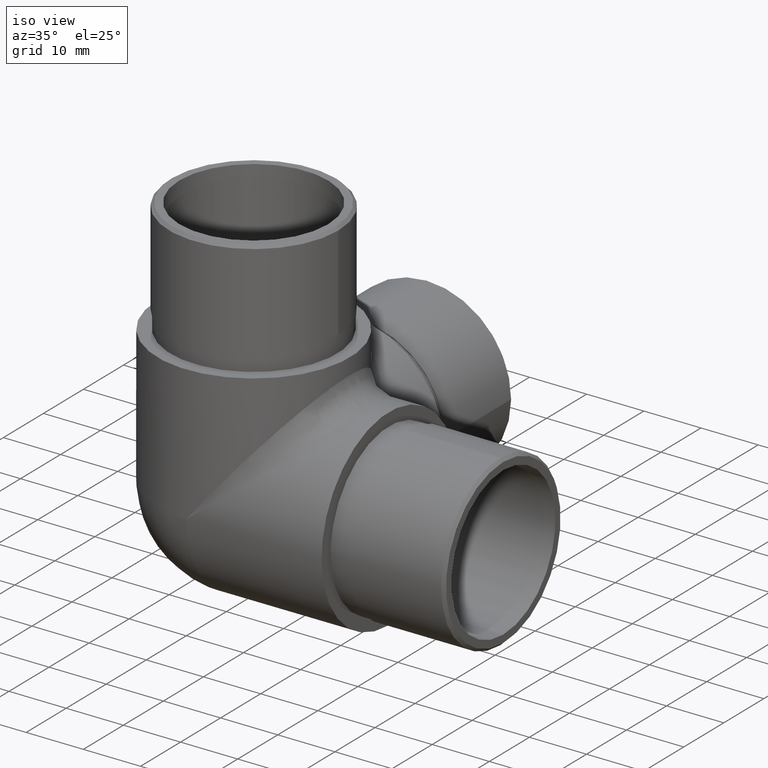
[diagram: clean part render]
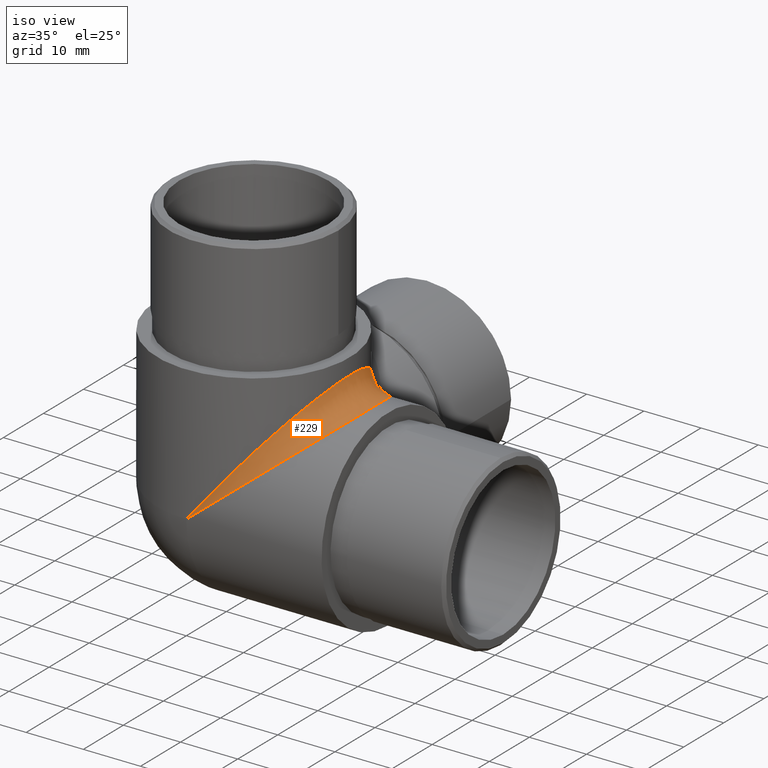
[diagram: same view with one face highlighted and labeled with its STEP entity id]
A machine part, iso view. The second image highlights one B-rep face of the part: STEP entity #229.
In plain terms, the highlighted face is a freeform B-spline surface patch.
Its self-contained STEP definition (entity closure, byte-faithful):
#6 = CARTESIAN_POINT ( 'NONE',  ( 1.599757130022875400E-014, -3.469446951953614200E-015, 16.85000000000001900 ) ) ;
#36 = CARTESIAN_POINT ( 'NONE',  ( 14.47047048483035100, 25.52249188407491700, 34.75559700942054100 ) ) ;
#53 = CARTESIAN_POINT ( 'NONE',  ( 15.81431149141733200, 10.84208202364713400, 32.66431149141733000 ) ) ;
#61 = CARTESIAN_POINT ( 'NONE',  ( 20.24970361800240300, 20.94850144072781000, 33.21486839152603900 ) ) ;
#62 = CARTESIAN_POINT ( 'NONE',  ( 4.093632277631148700, 0.2453534014377147000, 20.15828315962159000 ) ) ;
#67 = CARTESIAN_POINT ( 'NONE',  ( 14.40577954046329600, 7.952797080830926300, 31.25577954045901700 ) ) ;
#77 = CARTESIAN_POINT ( 'NONE',  ( 14.74317638773952900, 28.76474926299331300, 28.76474926299332300 ) ) ;
#83 = CARTESIAN_POINT ( 'NONE',  ( 14.74317638773951200, 28.76474926299331600, 28.76474926299331600 ) ) ;
#84 =( BOUNDED_SURFACE ( )  B_SPLINE_SURFACE ( 3, 2, ( 
 ( #83, #764, #840 ),
 ( #674, #917, #843 ),
 ( #334, #928, #1081 ),
 ( #329, #166, #257 ),
 ( #426, #597, #36 ),
 ( #517, #1025, #133 ),
 ( #890, #812, #548 ),
 ( #798, #476, #219 ),
 ( #61, #894, #646 ),
 ( #1063, #651, #903 ),
 ( #735, #733, #387 ),
 ( #810, #228, #1068 ),
 ( #230, #470, #1056 ),
 ( #466, #567, #658 ),
 ( #740, #821, #1058 ),
 ( #732, #141, #974 ),
 ( #815, #222, #557 ),
 ( #564, #53, #309 ),
 ( #402, #983, #299 ),
 ( #656, #391, #478 ),
 ( #898, #67, #233 ),
 ( #306, #1070, #813 ),
 ( #390, #642, #149 ),
 ( #559, #977, #475 ),
 ( #822, #901, #729 ),
 ( #314, #971, #139 ),
 ( #142, #398, #979 ),
 ( #62, #146, #849 ),
 ( #588, #251, #86 ),
 ( #691, #841, #6 ) ),
 .UNSPECIFIED., .F., .F., .F. ) 
 B_SPLINE_SURFACE_WITH_KNOTS ( ( 4, 2, 2, 2, 2, 2, 2, 2, 2, 2, 2, 2, 2, 2, 4 ),
 ( 3, 3 ),
 ( 5.497787143782138000, 5.645049299419159900, 5.792311455056180900, 5.939573610693202900, 6.086835766330224800, 6.234097921967245900, 6.381360077604267800, 6.528622233241289800, 6.675884388878310800, 6.823146544515331900, 6.970408700152353800, 7.117670855789375800, 7.264933011426396800, 7.559457322700439800, 7.853981633974482800 ),
 ( 0.0000000000000000000, 1.000000000000000000 ),
 .UNSPECIFIED. ) 
 GEOMETRIC_REPRESENTATION_ITEM ( )  RATIONAL_B_SPLINE_SURFACE ( (
 ( 1.000000000000000000, 0.8660254037844386000, 1.000000000000000000),
 ( 1.000000000000000000, 0.8518581657888411000, 1.000000000000000000),
 ( 1.000000000000000000, 0.8373286426274312300, 1.000000000000000000),
 ( 1.000000000000000000, 0.8087926538588080500, 1.000000000000000000),
 ( 1.000000000000000000, 0.7947862272500163500, 1.000000000000000000),
 ( 1.000000000000000000, 0.7686809988153058300, 1.000000000000000000),
 ( 1.000000000000000000, 0.7565887938673684400, 1.000000000000000000),
 ( 1.000000000000000000, 0.7357213436835566800, 1.000000000000000000),
 ( 1.000000000000000000, 0.7269560325909227800, 1.000000000000000000),
 ( 1.000000000000000000, 0.7139188639523945700, 1.000000000000000000),
 ( 1.000000000000000000, 0.7096565420258836900, 1.000000000000000000),
 ( 1.000000000000000000, 0.7062584530666191600, 1.000000000000000000),
 ( 1.000000000000000000, 0.7071257296528171700, 1.000000000000000000),
 ( 1.000000000000000000, 0.7138650231660640400, 1.000000000000000000),
 ( 1.000000000000000000, 0.7197312459720851500, 1.000000000000000000),
 ( 1.000000000000000000, 0.7356308174511879700, 1.000000000000000000),
 ( 1.000000000000000000, 0.7456538433598382000, 1.000000000000000000),
 ( 1.000000000000000000, 0.7685763963373676300, 1.000000000000000000),
 ( 1.000000000000000000, 0.7814668926403527400, 1.000000000000000000),
 ( 1.000000000000000000, 0.8086913583441225400, 1.000000000000000000),
 ( 1.000000000000000000, 0.8230199978452944500, 1.000000000000000000),
 ( 1.000000000000000000, 0.8517664595826001100, 1.000000000000000000),
 ( 1.000000000000000000, 0.8661820557088296700, 1.000000000000000000),
 ( 1.000000000000000000, 0.8939364460772187800, 1.000000000000000000),
 ( 1.000000000000000000, 0.9072747350166889800, 1.000000000000000000),
 ( 1.000000000000000000, 0.9442614554962144300, 1.000000000000000000),
 ( 1.000000000000000000, 0.9647745980452348000, 1.000000000000000000),
 ( 1.000000000000000000, 0.9926394134256518700, 1.000000000000000000),
 ( 1.000000000000000000, 1.000049692711909800, 1.000000000000000000),
 ( 1.000000000000000000, 1.000000000000000000, 1.000000000000000000) ) ) 
 REPRESENTATION_ITEM ( '' )  SURFACE ( )  );
#86 = CARTESIAN_POINT ( 'NONE',  ( 1.654339618480561900, -1.898799118040489000E-015, 18.89706118962941900 ) ) ;
#106 = CARTESIAN_POINT ( 'NONE',  ( 24.38557694080397200, 16.29392158518265200, 47.02443793565358000 ) ) ;
#133 = CARTESIAN_POINT ( 'NONE',  ( 15.25027612370925400, 24.06357814696112700, 35.72051971390590800 ) ) ;
#139 = CARTESIAN_POINT ( 'NONE',  ( 7.985904076289603600, 1.920687818538334300, 26.73166765522868700 ) ) ;
#141 = CARTESIAN_POINT ( 'NONE',  ( 16.43909050839588200, 12.95340451194903700, 33.28909050839768500 ) ) ;
#142 = CARTESIAN_POINT ( 'NONE',  ( 8.011238763879822100, 1.205757284386809400, 23.32431046385369600 ) ) ;
#146 = CARTESIAN_POINT ( 'NONE',  ( 3.725439844408351400, 0.3132273492216573500, 20.57543984439865200 ) ) ;
#149 = CARTESIAN_POINT ( 'NONE',  ( 11.92862569235843600, 4.920435019524434800, 31.61034692496497600 ) ) ;
#166 = CARTESIAN_POINT ( 'NONE',  ( 14.82445315692778300, 25.02916543859649000, 31.67445315693094800 ) ) ;
#184 = ORIENTED_EDGE ( 'NONE', *, *, #411, .F. ) ;
#195 = DIRECTION ( 'NONE',  ( 0.0000000000000000000, -0.7071067811865479100, -0.7071067811865471300 ) ) ;
#219 = CARTESIAN_POINT ( 'NONE',  ( 16.14366665606617000, 21.74782180458503000, 36.82599108480793900 ) ) ;
#222 = CARTESIAN_POINT ( 'NONE',  ( 16.27147724458715300, 12.26231219584090800, 33.12147724458714700 ) ) ;
#228 = CARTESIAN_POINT ( 'NONE',  ( 16.86082885427722600, 16.84710524222320100, 33.71082885427544800 ) ) ;
#229 = ADVANCED_FACE ( 'NONE', ( #687 ), #84, .F. ) ;
#230 = CARTESIAN_POINT ( 'NONE',  ( 20.84991934792729800, 16.02155080533441700, 33.69993482074812600 ) ) ;
#233 = CARTESIAN_POINT ( 'NONE',  ( 13.54994706066039700, 6.799847454637993700, 33.61655170413985900 ) ) ;
#251 = CARTESIAN_POINT ( 'NONE',  ( 1.850617136459671100, 6.273738993245411700E-012, 18.70061713645884200 ) ) ;
#257 = CARTESIAN_POINT ( 'NONE',  ( 14.02676316804169500, 26.22318230695452700, 34.20655857885262900 ) ) ;
#269 = CARTESIAN_POINT ( 'NONE',  ( 0.0000000000000000000, -6.938893903907228400E-015, 16.84999999999999800 ) ) ;
#289 = EDGE_LOOP ( 'NONE', ( #184, #431, #592 ) ) ;
#293 =( BOUNDED_CURVE ( )  B_SPLINE_CURVE ( 3, ( #269, #343, #106, #357 ),
 .UNSPECIFIED., .F., .F. ) 
 B_SPLINE_CURVE_WITH_KNOTS ( ( 4, 4 ),
 ( 4.712388980384689700, 7.068583470577033600 ),
 .UNSPECIFIED. ) 
 CURVE ( )  GEOMETRIC_REPRESENTATION_ITEM ( )  RATIONAL_B_SPLINE_CURVE ( ( 1.000000000000000000, 0.5884556215767268200, 0.5884556215767268200, 1.000000000000000000 ) ) 
 REPRESENTATION_ITEM ( '' )  );
#299 = CARTESIAN_POINT ( 'NONE',  ( 14.87795299498826500, 8.896815341599097600, 35.25981127273038900 ) ) ;
#306 = CARTESIAN_POINT ( 'NONE',  ( 15.46798420108408400, 5.521098869048615600, 29.35050521766504200 ) ) ;
#309 = CARTESIAN_POINT ( 'NONE',  ( 15.25084406827844700, 9.637622670941214100, 35.72122248211488900 ) ) ;
#314 = CARTESIAN_POINT ( 'NONE',  ( 9.881667655231000300, 1.920687818538154000, 24.83590407628933500 ) ) ;
#329 = CARTESIAN_POINT ( 'NONE',  ( 17.35655857885263500, 26.22318230695585900, 30.87676316804070700 ) ) ;
#334 = CARTESIAN_POINT ( 'NONE',  ( 16.13719548389027700, 27.55188425443910200, 29.89133064285704200 ) ) ;
#343 = CARTESIAN_POINT ( 'NONE',  ( 17.63641363597758300, -6.709203578114416100E-015, 38.67309936558650200 ) ) ;
#349 = CARTESIAN_POINT ( 'NONE',  ( 14.74317638773952400, 31.59317638773950100, 31.59317638773951500 ) ) ;
#357 = CARTESIAN_POINT ( 'NONE',  ( 11.91474926299332700, 28.76474926299331300, 31.59317638773950800 ) ) ;
#387 = CARTESIAN_POINT ( 'NONE',  ( 16.78911846251734400, 18.50291644772302400, 37.62466587201880900 ) ) ;
#390 = CARTESIAN_POINT ( 'NONE',  ( 14.76034692496497800, 4.920435019524184400, 28.77862569235815500 ) ) ;
#391 = CARTESIAN_POINT ( 'NONE',  ( 14.82249837655897900, 8.673329481796475400, 31.67249837655799300 ) ) ;
#398 = CARTESIAN_POINT ( 'NONE',  ( 7.216921912155106300, 1.491389647777603600, 24.06692191216508200 ) ) ;
#402 = CARTESIAN_POINT ( 'NONE',  ( 18.40981127273039100, 8.896815341599975100, 31.72795299498879000 ) ) ;
#411 = EDGE_CURVE ( 'NONE', #432, #882, #727, .T. ) ;
#426 = CARTESIAN_POINT ( 'NONE',  ( 17.90559700942054600, 25.52249188407409600, 31.32047048483078200 ) ) ;
#431 = ORIENTED_EDGE ( 'NONE', *, *, #440, .F. ) ;
#432 = VERTEX_POINT ( 'NONE', #523 ) ;
#440 = EDGE_CURVE ( 'NONE', #814, #432, #293, .T. ) ;
#466 = CARTESIAN_POINT ( 'NONE',  ( 20.64928375430330100, 14.37527156555926800, 33.53779046810490200 ) ) ;
#470 = CARTESIAN_POINT ( 'NONE',  ( 16.85080803506640700, 16.22488360112291900, 33.70080803506999000 ) ) ;
#475 = CARTESIAN_POINT ( 'NONE',  ( 10.70291108598604300, 3.809512056013403500, 30.09366149215563600 ) ) ;
#476 = CARTESIAN_POINT ( 'NONE',  ( 16.44239679482732800, 20.74454405567851000, 33.29239679482731900 ) ) ;
#478 = CARTESIAN_POINT ( 'NONE',  ( 14.02750116202087200, 7.477922179089267400, 34.20747176428091100 ) ) ;
#508 = EDGE_CURVE ( 'NONE', #882, #814, #714, .T. ) ;
#517 = CARTESIAN_POINT ( 'NONE',  ( 18.87051971390591000, 24.06357814696193700, 32.10027612370880900 ) ) ;
#523 = CARTESIAN_POINT ( 'NONE',  ( 11.91474926299332700, 28.76474926299331300, 31.59317638773950800 ) ) ;
#528 = CARTESIAN_POINT ( 'NONE',  ( 14.74317638773952900, 28.76474926299331300, 28.76474926299332300 ) ) ;
#540 = CARTESIAN_POINT ( 'NONE',  ( 0.0000000000000000000, -6.938893903907228400E-015, 16.84999999999999800 ) ) ;
#548 = CARTESIAN_POINT ( 'NONE',  ( 15.58636834060163800, 23.30536625473274300, 36.13639643332403000 ) ) ;
#557 = CARTESIAN_POINT ( 'NONE',  ( 15.88389617735187400, 11.16594565835516000, 36.50455402360570600 ) ) ;
#559 = CARTESIAN_POINT ( 'NONE',  ( 13.24366149215563800, 3.809512056013650400, 27.55291108598631300 ) ) ;
#564 = CARTESIAN_POINT ( 'NONE',  ( 18.87122248211298400, 9.637622670942695500, 32.10084406827905900 ) ) ;
#567 = CARTESIAN_POINT ( 'NONE',  ( 16.76309417136822300, 14.94721187219662700, 33.61309417136467200 ) ) ;
#581 = CARTESIAN_POINT ( 'NONE',  ( 21.82309936558548500, -2.389528076566688800E-015, 34.48641363597742800 ) ) ;
#588 = CARTESIAN_POINT ( 'NONE',  ( 2.047061189632474900, -1.817750967257128500E-015, 18.50433961847707200 ) ) ;
#592 = ORIENTED_EDGE ( 'NONE', *, *, #508, .F. ) ;
#597 = CARTESIAN_POINT ( 'NONE',  ( 15.19650414771389900, 24.30353280666639600, 32.04650414771583700 ) ) ;
#642 = CARTESIAN_POINT ( 'NONE',  ( 12.88733898682535400, 5.875851511561899400, 29.73733898682085200 ) ) ;
#646 = CARTESIAN_POINT ( 'NONE',  ( 16.36486839152598100, 20.94850144072816200, 37.09970361800419900 ) ) ;
#651 = CARTESIAN_POINT ( 'NONE',  ( 16.76531189982149400, 18.74812612837729400, 33.61531189981784000 ) ) ;
#656 = CARTESIAN_POINT ( 'NONE',  ( 17.35747176428091300, 7.477922179088384500, 30.87750116202034100 ) ) ;
#658 = CARTESIAN_POINT ( 'NONE',  ( 16.68779046810493600, 14.37527156555962000, 37.49928375430150900 ) ) ;
#674 = CARTESIAN_POINT ( 'NONE',  ( 15.46689860027927700, 28.17987064038835900, 29.34962788559827400 ) ) ;
#687 = FACE_OUTER_BOUND ( 'NONE', #289, .T. ) ;
#691 = CARTESIAN_POINT ( 'NONE',  ( 1.979521433885872500E-014, -3.469446951953614200E-015, 16.85000000000001600 ) ) ;
#714 =( BOUNDED_CURVE ( )  B_SPLINE_CURVE ( 3, ( #77, #744, #581, #911 ),
 .UNSPECIFIED., .F., .F. ) 
 B_SPLINE_CURVE_WITH_KNOTS ( ( 4, 4 ),
 ( 5.497787143782150400, 7.853981633974482800 ),
 .UNSPECIFIED. ) 
 CURVE ( )  GEOMETRIC_REPRESENTATION_ITEM ( )  RATIONAL_B_SPLINE_CURVE ( ( 1.000000000000000000, 0.5884556215767303700, 0.5884556215767303700, 1.000000000000000000 ) ) 
 REPRESENTATION_ITEM ( '' )  );
#727 = CIRCLE ( 'NONE', #766, 3.999999999999998200 ) ;
#729 = CARTESIAN_POINT ( 'NONE',  ( 10.04908560142567400, 3.299261639784019500, 29.28462521007375200 ) ) ;
#732 = CARTESIAN_POINT ( 'NONE',  ( 19.97646822296191600, 11.95344935109898900, 32.99405225692645900 ) ) ;
#733 = CARTESIAN_POINT ( 'NONE',  ( 16.81787279700171900, 18.11278211331076800, 33.66787279700350400 ) ) ;
#735 = CARTESIAN_POINT ( 'NONE',  ( 20.77466587201880800, 18.50291644772302000, 33.63911846251733800 ) ) ;
#740 = CARTESIAN_POINT ( 'NONE',  ( 20.47383503525054800, 13.55811858616095100, 33.39600097572964200 ) ) ;
#744 = CARTESIAN_POINT ( 'NONE',  ( 30.17443793565227500, 16.29392158518248100, 41.23557694080385300 ) ) ;
#764 = CARTESIAN_POINT ( 'NONE',  ( 12.85755830457538300, 27.82194022141125300, 29.70755830457537900 ) ) ;
#766 = AXIS2_PLACEMENT_3D ( 'NONE', #349, #936, #195 ) ;
#798 = CARTESIAN_POINT ( 'NONE',  ( 19.97599108480606800, 21.74782180458502600, 32.99366665606616800 ) ) ;
#810 = CARTESIAN_POINT ( 'NONE',  ( 20.87510465173688000, 16.85066417711089000, 33.72028841159696800 ) ) ;
#812 = CARTESIAN_POINT ( 'NONE',  ( 16.06072260665749600, 22.14337367057157000, 32.91072260665749400 ) ) ;
#813 = CARTESIAN_POINT ( 'NONE',  ( 12.50050521766377200, 5.521098869047071000, 32.31798420108619000 ) ) ;
#814 = VERTEX_POINT ( 'NONE', #540 ) ;
#815 = CARTESIAN_POINT ( 'NONE',  ( 19.65455402360761600, 11.16594565835367400, 32.73389617735124800 ) ) ;
#821 = CARTESIAN_POINT ( 'NONE',  ( 16.68628196688664600, 14.29998532404788800, 33.53628196688478600 ) ) ;
#822 = CARTESIAN_POINT ( 'NONE',  ( 12.43462521007259600, 3.299261639784107900, 26.89908560142580600 ) ) ;
#840 = CARTESIAN_POINT ( 'NONE',  ( 11.91474926299332000, 28.76474926299331600, 31.59317638773950800 ) ) ;
#841 = CARTESIAN_POINT ( 'NONE',  ( 1.789639281954373900E-014, -3.469446951953614200E-015, 16.85000000000001900 ) ) ;
#843 = CARTESIAN_POINT ( 'NONE',  ( 12.49962788559583300, 28.17987064039080600, 32.31689860028463100 ) ) ;
#849 = CARTESIAN_POINT ( 'NONE',  ( 3.308283159620468300, 0.2453534014373740200, 20.94363227763237500 ) ) ;
#882 = VERTEX_POINT ( 'NONE', #528 ) ;
#890 = CARTESIAN_POINT ( 'NONE',  ( 19.28639643332591200, 23.30536625473273900, 32.43636834060163900 ) ) ;
#894 = CARTESIAN_POINT ( 'NONE',  ( 16.57654214454456500, 20.06819806570603100, 33.42654214454815100 ) ) ;
#898 = CARTESIAN_POINT ( 'NONE',  ( 16.76655170414196400, 6.799847454636445600, 30.39994706065912300 ) ) ;
#901 = CARTESIAN_POINT ( 'NONE',  ( 10.99872592894645400, 3.999164162904791800, 27.84872592894294400 ) ) ;
#903 = CARTESIAN_POINT ( 'NONE',  ( 16.68759555806286300, 19.32604241121543600, 37.49904257481046700 ) ) ;
#911 = CARTESIAN_POINT ( 'NONE',  ( 0.0000000000000000000, -6.938893903907228400E-015, 16.84999999999999800 ) ) ;
#917 = CARTESIAN_POINT ( 'NONE',  ( 13.43653663588574800, 27.14885095195904100, 30.28653663589238600 ) ) ;
#928 = CARTESIAN_POINT ( 'NONE',  ( 13.94191703266171900, 26.45200353338313800, 30.79191703265867000 ) ) ;
#936 = DIRECTION ( 'NONE',  ( 0.5773502691896249500, -0.5773502691896259500, 0.5773502691896265100 ) ) ;
#971 = CARTESIAN_POINT ( 'NONE',  ( 8.868828295484755500, 2.385013967463837800, 25.71882829549150500 ) ) ;
#974 = CARTESIAN_POINT ( 'NONE',  ( 16.14405225692657500, 11.95344935109942100, 36.82646822296374000 ) ) ;
#977 = CARTESIAN_POINT ( 'NONE',  ( 11.66757407722413800, 4.600027485678313400, 28.51757407722848500 ) ) ;
#979 = CARTESIAN_POINT ( 'NONE',  ( 6.474310463854824800, 1.205757284387150900, 24.86123876387858900 ) ) ;
#983 = CARTESIAN_POINT ( 'NONE',  ( 15.52952239489837700, 10.11942115593616100, 32.37952239489938900 ) ) ;
#1025 = CARTESIAN_POINT ( 'NONE',  ( 15.81736895204670500, 22.85853509617726000, 32.66736895204470400 ) ) ;
#1056 = CARTESIAN_POINT ( 'NONE',  ( 16.84993482074808900, 16.02155080533407300, 37.69991934792908200 ) ) ;
#1058 = CARTESIAN_POINT ( 'NONE',  ( 16.54600097572954100, 13.55811858616052300, 37.32383503524871300 ) ) ;
#1063 = CARTESIAN_POINT ( 'NONE',  ( 20.64904257481228500, 19.32604241121577700, 33.53759555806279000 ) ) ;
#1068 = CARTESIAN_POINT ( 'NONE',  ( 16.87028841159696300, 16.85066417711089700, 37.72510465173688500 ) ) ;
#1070 = CARTESIAN_POINT ( 'NONE',  ( 13.43593229436341100, 6.554521615066941600, 30.28593229436754100 ) ) ;
#1081 = CARTESIAN_POINT ( 'NONE',  ( 13.04133064285605300, 27.55188425444043800, 32.98719548389028200 ) ) ;